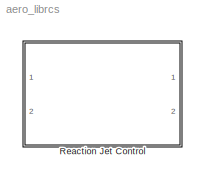
MODEL aero_librcs
KIND library
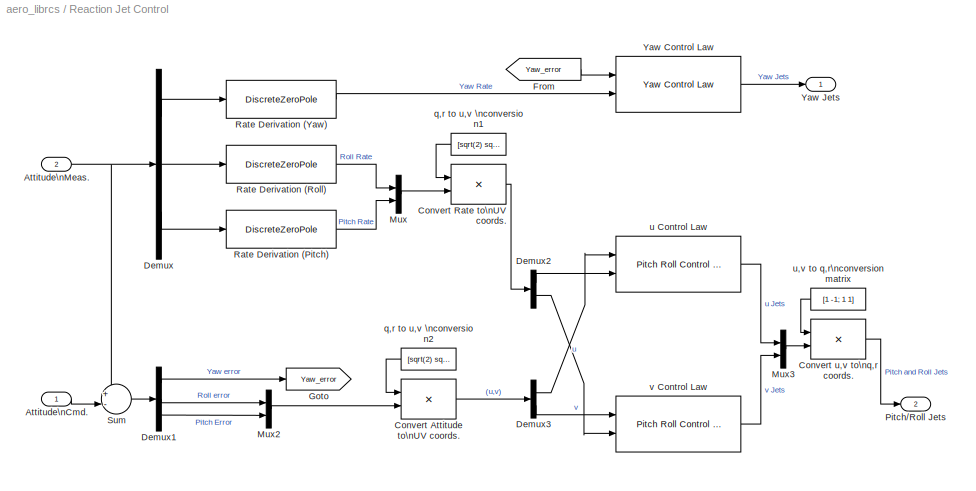
BLOCK [SubSystem] Reaction Jet Control
  MinAlgLoopOccurrences = off
  Ports = [2, 2]
  PropExecContextAcrossSSBoundary = on
  RTWSystemCode = Auto
  TreatAsAtomicUnit = off
BLOCK [Inport] Reaction Jet Control/Attitude\nCmd.
  IconDisplay = Port number
  LatchInput = off
  Port = 1
BLOCK [Inport] Reaction Jet Control/Attitude\nMeas.
  IconDisplay = Port number
  LatchInput = off
  Port = 2
BLOCK [Product] Reaction Jet Control/Convert Attitude to\nUV coords.
  Multiplication = Matrix(*)
  Ports = [2, 1]
BLOCK [Product] Reaction Jet Control/Convert Rate to\nUV coords.
  Multiplication = Matrix(*)
  Ports = [2, 1]
BLOCK [Product] Reaction Jet Control/Convert u,v to\nq,r coords.
  Multiplication = Matrix(*)
  Ports = [2, 1]
BLOCK [Demux] Reaction Jet Control/Demux
  Outputs = 3
  Ports = [1, 3]
BLOCK [Demux] Reaction Jet Control/Demux1
  Outputs = 3
  Ports = [1, 3]
BLOCK [Demux] Reaction Jet Control/Demux2
  Outputs = 2
  Ports = [1, 2]
BLOCK [Demux] Reaction Jet Control/Demux3
  Outputs = 2
  Ports = [1, 2]
BLOCK [From] Reaction Jet Control/From
  DialogController = Simulink.DDGSource
  GotoTag = Yaw_error
BLOCK [Goto] Reaction Jet Control/Goto
  DialogController = Simulink.DDGSource
  GotoTag = Yaw_error
  TagVisibility = local
BLOCK [Mux] Reaction Jet Control/Mux
  DisplayOption = bar
  Inputs = 2
  Ports = [2, 1]
BLOCK [Mux] Reaction Jet Control/Mux2
  DisplayOption = bar
  Inputs = 2
  Ports = [2, 1]
BLOCK [Mux] Reaction Jet Control/Mux3
  DisplayOption = bar
  Inputs = 2
  Ports = [2, 1]
BLOCK [Outport] Reaction Jet Control/Pitch//Roll Jets
  IconDisplay = Port number
  InitialOutput = 0
  Port = 2
BLOCK [DiscreteZeroPole] Reaction Jet Control/Rate Derivation (Pitch)
  Gain = 1/delt
  Poles = [0]
  SampleTime = -1
BLOCK [DiscreteZeroPole] Reaction Jet Control/Rate Derivation (Roll)
  Gain = 1/delt
  Poles = [0]
  SampleTime = -1
BLOCK [DiscreteZeroPole] Reaction Jet Control/Rate Derivation (Yaw)
  Gain = 1/delt
  Poles = [0]
  SampleTime = -1
BLOCK [Sum] Reaction Jet Control/Sum
  IconShape = round
  Inputs = +-|
  Ports = [2, 1]
BLOCK [Reference] Reaction Jet Control/Yaw Control Law  REF=aero_libdap/Yaw Control Law  (lib defined in mdl_b19959723b40, slx_4c0f97724d47, +1 more)
  DB = DB
  Ports = [2, 1]
  SourceBlock = aero_libdap/Yaw Control Law
  SourceType = Control Law
  alph = alph1
  alphs = alphs1
  delt = delt
  tmin = tmin
BLOCK [Outport] Reaction Jet Control/Yaw Jets
  IconDisplay = Port number
  InitialOutput = 0
BLOCK [Constant] Reaction Jet Control/q,r to u,v \nconversion1
  Value = [sqrt(2) sqrt(2); -sqrt(2) sqrt(2)]/2
  VectorParams1D = off
BLOCK [Constant] Reaction Jet Control/q,r to u,v \nconversion2
  Value = [sqrt(2) sqrt(2); -sqrt(2) sqrt(2)]/2
  VectorParams1D = off
BLOCK [Reference] Reaction Jet Control/u Control Law  REF=aero_libdap/Pitch Roll Control Law  (lib defined in mdl_b19959723b40, slx_4c0f97724d47, +1 more)
  DB = DB
  Ports = [2, 1]
  SourceBlock = aero_libdap/Pitch Roll Control Law
  SourceType = Control Law
  alph = alphu
  alphs = alphsu
  delt = delt
  tmin = tmin
BLOCK [Constant] Reaction Jet Control/u,v to q,r\nconversion matrix
  Value = [1 -1; 1 1]
  VectorParams1D = off
BLOCK [Reference] Reaction Jet Control/v Control Law  REF=aero_libdap/Pitch Roll Control Law  (lib defined in mdl_b19959723b40, slx_4c0f97724d47, +1 more)
  DB = DB
  Ports = [2, 1]
  SourceBlock = aero_libdap/Pitch Roll Control Law
  SourceType = Control Law
  alph = alphv
  alphs = alphsv
  delt = delt
  tmin = tmin
LINE Reaction Jet Control/Attitude\nCmd.:1 -> Reaction Jet Control/Sum:2
NET Reaction Jet Control/Attitude\nMeas.:1 -> Reaction Jet Control/Demux:1, Reaction Jet Control/Sum:1
LINE Reaction Jet Control/Convert Attitude to\nUV coords.:1 -> Reaction Jet Control/Demux3:1
LINE Reaction Jet Control/Convert Rate to\nUV coords.:1 -> Reaction Jet Control/Demux2:1
LINE Reaction Jet Control/Convert u,v to\nq,r coords.:1 -> Reaction Jet Control/Pitch//Roll Jets:1
LINE Reaction Jet Control/Demux1:1 -> Reaction Jet Control/Goto:1
LINE Reaction Jet Control/Demux1:2 -> Reaction Jet Control/Mux2:1
LINE Reaction Jet Control/Demux1:3 -> Reaction Jet Control/Mux2:2
LINE Reaction Jet Control/Demux2:1 -> Reaction Jet Control/u Control Law:2
LINE Reaction Jet Control/Demux2:2 -> Reaction Jet Control/v Control Law:2
LINE Reaction Jet Control/Demux3:1 -> Reaction Jet Control/u Control Law:1
LINE Reaction Jet Control/Demux3:2 -> Reaction Jet Control/v Control Law:1
LINE Reaction Jet Control/Demux:1 -> Reaction Jet Control/Rate Derivation (Yaw):1
LINE Reaction Jet Control/Demux:2 -> Reaction Jet Control/Rate Derivation (Roll):1
LINE Reaction Jet Control/Demux:3 -> Reaction Jet Control/Rate Derivation (Pitch):1
LINE Reaction Jet Control/From:1 -> Reaction Jet Control/Yaw Control Law:1
LINE Reaction Jet Control/Mux2:1 -> Reaction Jet Control/Convert Attitude to\nUV coords.:2
LINE Reaction Jet Control/Mux3:1 -> Reaction Jet Control/Convert u,v to\nq,r coords.:2
LINE Reaction Jet Control/Mux:1 -> Reaction Jet Control/Convert Rate to\nUV coords.:2
LINE Reaction Jet Control/Rate Derivation (Pitch):1 -> Reaction Jet Control/Mux:2
LINE Reaction Jet Control/Rate Derivation (Roll):1 -> Reaction Jet Control/Mux:1
LINE Reaction Jet Control/Rate Derivation (Yaw):1 -> Reaction Jet Control/Yaw Control Law:2
LINE Reaction Jet Control/Sum:1 -> Reaction Jet Control/Demux1:1
LINE Reaction Jet Control/Yaw Control Law:1 -> Reaction Jet Control/Yaw Jets:1
LINE Reaction Jet Control/q,r to u,v \nconversion1:1 -> Reaction Jet Control/Convert Rate to\nUV coords.:1
LINE Reaction Jet Control/q,r to u,v \nconversion2:1 -> Reaction Jet Control/Convert Attitude to\nUV coords.:1
LINE Reaction Jet Control/u Control Law:1 -> Reaction Jet Control/Mux3:1
LINE Reaction Jet Control/u,v to q,r\nconversion matrix:1 -> Reaction Jet Control/Convert u,v to\nq,r coords.:1
LINE Reaction Jet Control/v Control Law:1 -> Reaction Jet Control/Mux3:2
note: NET lines group one-source signal fan-out (src -> all destinations, sorted); 1:1 wires keep LINE
